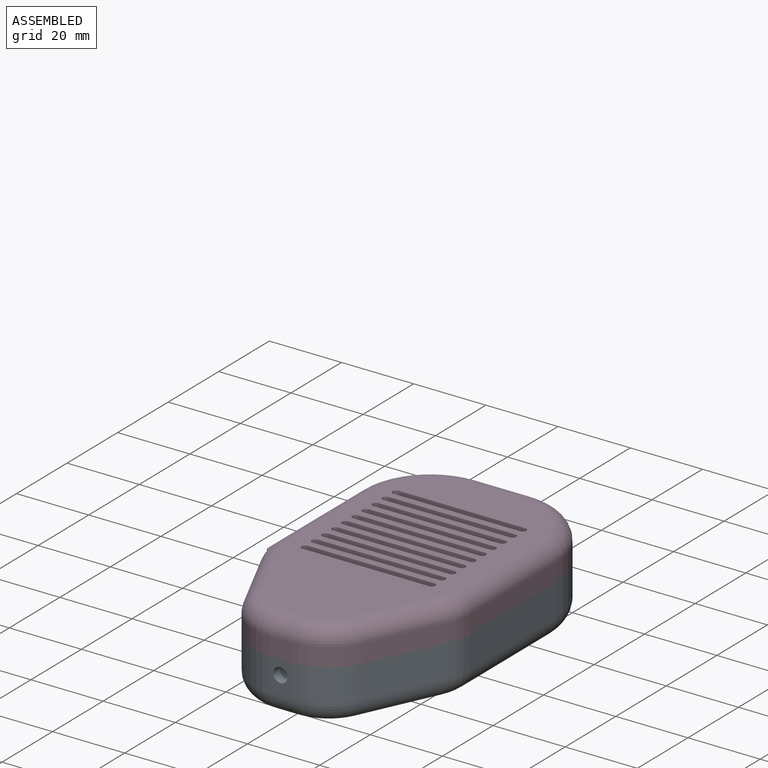
[diagram: assembled view]
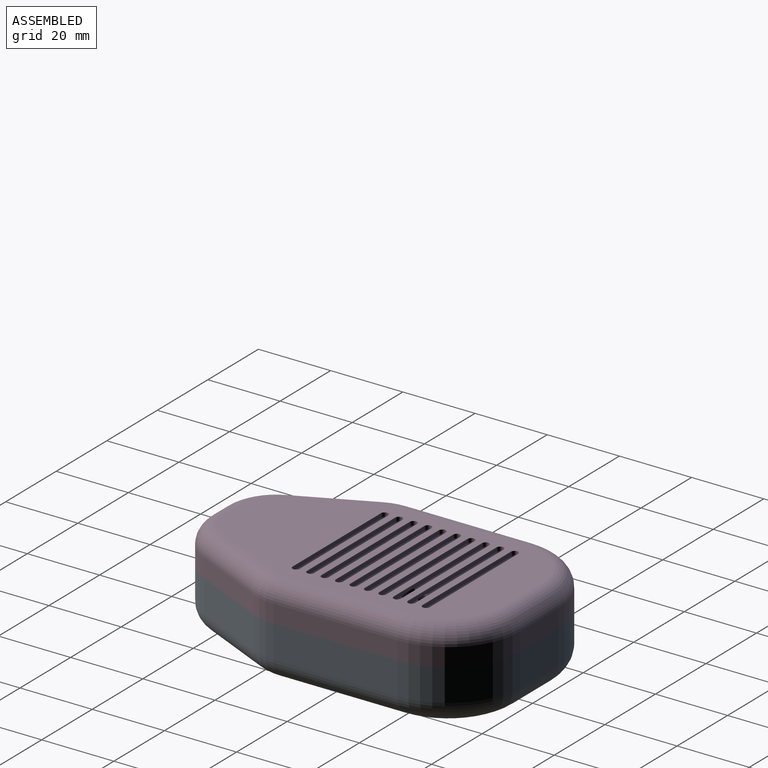
[diagram: assembled view, second angle]
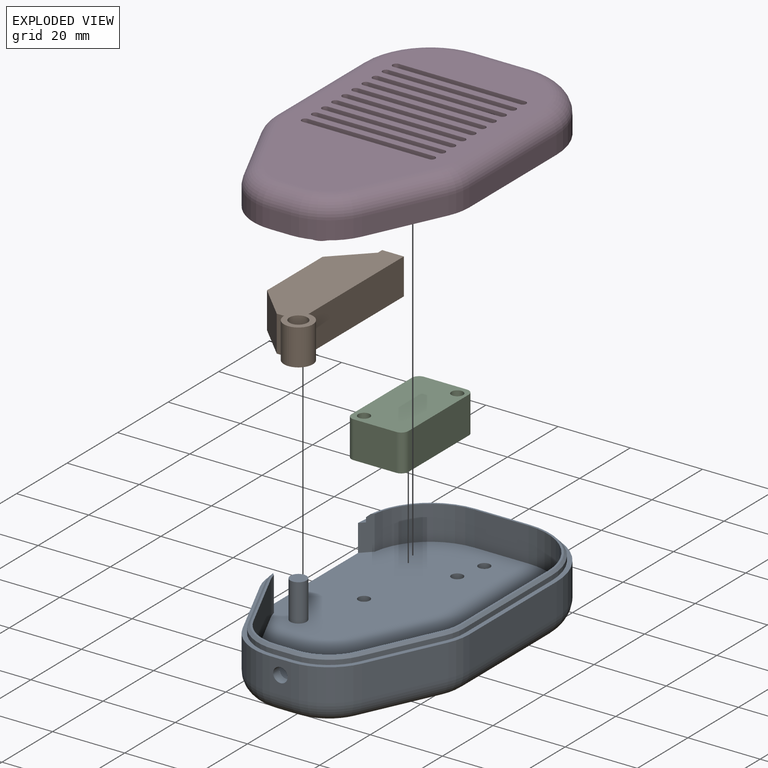
[diagram: exploded view]
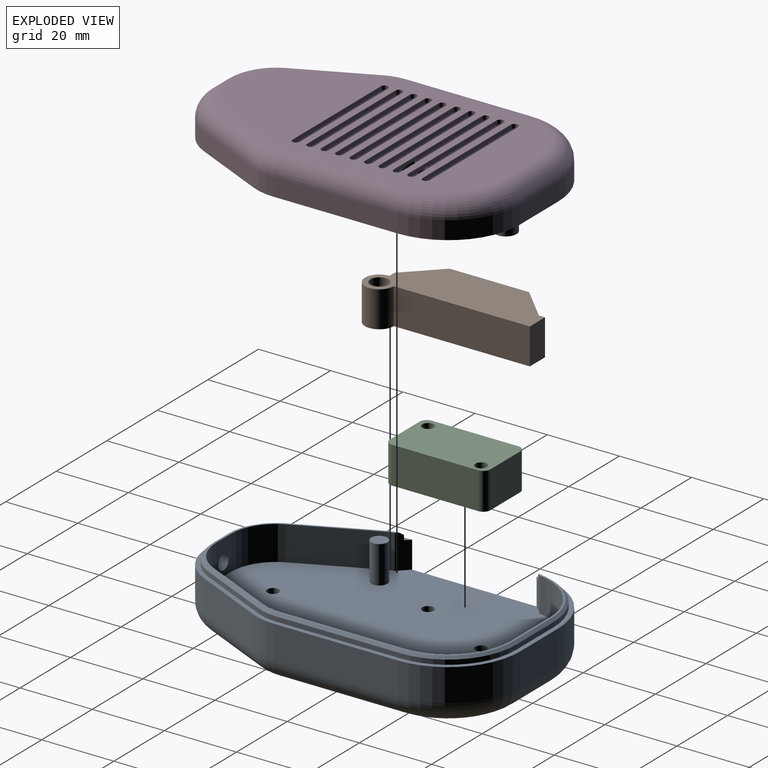
[diagram: exploded view, second angle]
ASSEMBLY  parts=4 mates=3
PART A: 70 faces, bbox 58.3x92.9x17.9 mm
  f0: cylinder r=17.5mm len=17.29mm, axis (0,0,-1), area 235.3mm2, adj f14,f19,f26,f44
  f1: plane 90x55mm, normal (0,0,1), area 256.7mm2, adj f2,f4,f5,f6,f7,f8,f9,f10
  f2: plane 15x9mm, normal (0,1,0), area 135mm2, adj f1,f8,f9,f59
  f3: plane 34.51x1.5mm, normal (-1,0,0), area 51.8mm2, adj f8,f10,f19,f60
  f4: plane 20.49x9.56mm, normal (-0.91,-0.42,0), area 203.5mm2, adj f1,f10,f11,f64
  f5: plane 9x5.89mm, normal (0,-1,0), area 40.4mm2, adj f1,f11,f12,f56,f68
  f6: plane 20.49x9.56mm, normal (0.91,-0.42,0), area 203.5mm2, adj f1,f12,f13,f67
  f7: plane 34.51x9mm, normal (1,0,0), area 310.6mm2, adj f1,f9,f13,f63
  f8: cylinder r=20mm len=20mm, axis (0,0,-1), area 282.7mm2, adj f1,f2,f3,f26,f58
  f9: cylinder r=20mm len=20mm, axis (0,0,-1), area 282.7mm2, adj f1,f2,f7,f61
  f10: cylinder r=15mm len=9mm, axis (0,0,1), area 58.9mm2, adj f1,f3,f4,f25,f62
  f11: cylinder r=15mm len=13.59mm, axis (0,0,1), area 153.2mm2, adj f1,f4,f5,f66
  f12: cylinder r=15mm len=13.59mm, axis (0,0,-1), area 153.2mm2, adj f1,f5,f6,f69
  f13: cylinder r=15mm len=9mm, axis (0,0,-1), area 58.9mm2, adj f1,f6,f7,f65
  f14: plane 15x9.5mm, normal (0,-1,0), area 142.5mm2, adj f0,f19,f20,f44
  f15: plane 20.49x9.56mm, normal (0.91,0.42,0), area 214.8mm2, adj f19,f21,f22,f44
  f16: plane 9.5x5.89mm, normal (0,1,0), area 43.4mm2, adj f19,f22,f23,f44,f56
  f17: plane 20.49x9.56mm, normal (-0.91,0.42,0), area 214.8mm2, adj f19,f23,f24,f44
  f18: plane 34.51x9.5mm, normal (-1,0,0), area 327.8mm2, adj f19,f20,f24,f44
  f19: plane 85x52.5mm, normal (0,0,1), area 3714.6mm2, adj f0,f3,f14,f15,f16,f17,f18,f20
  f20: cylinder r=17.5mm len=17.5mm, axis (0,0,-1), area 261.1mm2, adj f14,f18,f19,f44
  f21: cylinder r=12.5mm len=9.5mm, axis (0,0,1), area 24.8mm2, adj f15,f19,f25,f44
  f22: cylinder r=12.5mm len=11.33mm, axis (0,0,1), area 134.7mm2, adj f15,f16,f19,f44
  f23: cylinder r=12.5mm len=11.33mm, axis (0,0,-1), area 134.7mm2, adj f16,f17,f19,f44
  f24: cylinder r=12.5mm len=9.5mm, axis (0,0,-1), area 51.8mm2, adj f17,f18,f19,f44
  f25: plane 9.5x2.82mm, normal (0.71,0.71,0), area 33.8mm2, adj f1,f10,f19,f21,f34,f44,f45
  f26: plane 9.5x2.71mm, normal (0.71,-0.71,0), area 32.4mm2, adj f0,f1,f8,f19,f33,f44,f55
  f27: plane 4.5x4.5mm, normal (0,0,1), area 15.9mm2, adj f28
  f28: cylinder r=2.25mm len=10.35mm, axis (0,0,-1), area 146.3mm2, adj f19,f27
  f29: cylinder r=1.6mm len=7.5mm, axis (0,0,1), area 75.4mm2, adj f19,f57
  f30: cylinder r=1.6mm len=7.5mm, axis (0,0,1), area 75.4mm2, adj f19,f57
  f31: cylinder r=1.6mm len=7.5mm, axis (0,0,1), area 75.4mm2, adj f19,f57
  f32: cylinder r=1.6mm len=7.5mm, axis (0,0,1), area 75.4mm2, adj f19,f57
  f33: cylinder r=18.75mm len=18.71mm, axis (0,0,-1), area 36.6mm2, adj f1,f26,f43,f55
  f34: cylinder r=13.75mm len=4.5mm, axis (0,0,-1), area 6.1mm2, adj f1,f25,f35,f45
  f35: plane 20.49x9.56mm, normal (-0.91,-0.42,0), area 29.4mm2, adj f1,f34,f36,f46
  f36: cylinder r=13.75mm len=12.46mm, axis (0,0,-1), area 20.3mm2, adj f1,f35,f37,f47
  f37: plane 5.89x1.3mm, normal (0,-1,0), area 7.7mm2, adj f1,f36,f38,f48
  f38: cylinder r=13.75mm len=12.46mm, axis (0,0,-1), area 20.3mm2, adj f1,f37,f39,f49
  f39: plane 20.49x9.56mm, normal (0.91,-0.42,0), area 29.4mm2, adj f1,f38,f40,f50
  f40: cylinder r=13.75mm len=5.81mm, axis (0,0,-1), area 7.8mm2, adj f1,f39,f41,f51
  f41: plane 34.51x1.3mm, normal (1,0,0), area 44.9mm2, adj f1,f40,f42,f52
  f42: cylinder r=18.75mm len=18.75mm, axis (0,0,-1), area 38.3mm2, adj f1,f41,f43,f53
  f43: plane 15x1.3mm, normal (0,1,0), area 19.5mm2, adj f1,f33,f42,f54
  f44: plane 86.1x50.98mm, normal (0,0,1), area 105.4mm2, adj f0,f14,f15,f16,f17,f18,f20,f21
  f45: cone r=13.05mm half-angle=45deg, axis (0,0,-1), area 4.1mm2, adj f25,f34,f44,f46
  f46: plane 20.79x10.19mm, normal (-0.64,-0.3,0.71), area 22.4mm2, adj f35,f44,f45,f47
  f47: cone r=13.05mm half-angle=45deg, axis (0,0,-1), area 15mm2, adj f36,f44,f46,f48
  f48: plane 5.89x0.7mm, normal (0,-0.71,0.71), area 5.8mm2, adj f37,f44,f47,f49
  f49: cone r=13.05mm half-angle=45deg, axis (0,0,-1), area 15mm2, adj f38,f44,f48,f50
  f50: plane 20.79x10.19mm, normal (0.64,-0.3,0.71), area 22.4mm2, adj f39,f44,f49,f51
  f51: cone r=13.05mm half-angle=45deg, axis (0,0,-1), area 5.8mm2, adj f40,f44,f50,f52
  f52: plane 34.51x0.7mm, normal (0.71,0,0.71), area 34.2mm2, adj f41,f44,f51,f53
  f53: cone r=18.05mm half-angle=45deg, axis (0,0,-1), area 28.6mm2, adj f42,f44,f52,f54
  f54: plane 15x0.7mm, normal (0,0.71,0.71), area 14.8mm2, adj f43,f44,f53,f55
  f55: cone r=18.05mm half-angle=45deg, axis (0,0,-1), area 26.9mm2, adj f26,f33,f44,f54
  f56: cylinder r=2mm len=4mm, axis (0,-1,0), area 31.4mm2, adj f5,f16
  f57: plane 78x43mm, normal (0,0,-1), area 2873.2mm2, adj f29,f30,f31,f32,f58,f59,f60,f61
  f58: torus R=14mm, axis (0,0,1), area 263.8mm2, adj f8,f57,f59,f60
  f59: cylinder r=6mm len=15mm, axis (-1,0,0), area 141.4mm2, adj f2,f57,f58,f61
  f60: cylinder r=6mm len=34.51mm, axis (0,-1,0), area 325.2mm2, adj f3,f57,f58,f62
  f61: torus R=14mm, axis (0,0,1), area 263.8mm2, adj f9,f57,f59,f63
  f62: torus R=9mm, axis (0,0,1), area 52.7mm2, adj f10,f57,f60,f64
  f63: cylinder r=6mm len=34.51mm, axis (0,1,0), area 325.2mm2, adj f7,f57,f61,f65
  f64: cylinder r=6mm len=23.03mm, axis (0.42,-0.91,0), area 213.1mm2, adj f4,f57,f62,f66
  f65: torus R=9mm, axis (0,0,1), area 52.7mm2, adj f13,f57,f63,f67
  f66: torus R=9mm, axis (0,0,1), area 137.1mm2, adj f11,f57,f64,f68
  f67: cylinder r=6mm len=23.03mm, axis (0.42,0.91,0), area 213.1mm2, adj f6,f57,f65,f69
  f68: cylinder r=6mm len=6mm, axis (1,0,0), area 55.5mm2, adj f5,f57,f66,f69
  f69: torus R=9mm, axis (0,0,1), area 137.1mm2, adj f12,f57,f67,f68
PART B: 11 faces, bbox 19x45.7x10 mm
  f0: plane 10x2mm, normal (0,-1,0), area 20mm2, adj f1,f7,f9,f10
  f1: cylinder r=4mm len=10mm, axis (0,0,-1), area 188.5mm2, adj f0,f2,f9,f10
  f2: plane 37.7x10mm, normal (1,0,0), area 377mm2, adj f1,f3,f9,f10
  f3: plane 10x6mm, normal (0,1,0), area 60mm2, adj f2,f4,f9,f10
  f4: plane 10x1.7mm, normal (-1,0,0), area 17mm2, adj f3,f5,f9,f10
  f5: plane 10x9mm, normal (-0.71,0.71,0), area 127.3mm2, adj f4,f6,f9,f10
  f6: plane 22x10mm, normal (-1,0,0), area 220mm2, adj f5,f7,f9,f10
  f7: plane 10x9mm, normal (-0.71,-0.71,0), area 127.3mm2, adj f0,f6,f9,f10
  f8: cylinder r=2.5mm len=10mm, axis (0,0,-1), area 157.1mm2, adj f9,f10
  f9: plane 45.7x19mm, normal (0,0,1), area 547.3mm2, adj f0,f1,f2,f3,f4,f5,f6,f7
  f10: plane 45.7x19mm, normal (0,0,-1), area 547.3mm2, adj f0,f1,f2,f3,f4,f5,f6,f7
PART C: 19 faces, bbox 18.3x27.9x10.2 mm
  f0: plane 23.87x10.23mm, normal (1,0,0), area 244.2mm2, adj f6,f7,f13,f16
  f1: plane 11.78x10.23mm, normal (0,1,0), area 120.5mm2, adj f6,f7,f13,f14
  f2: plane 23.87x10.23mm, normal (-1,0,0), area 233.2mm2, adj f6,f7,f8,f9,f10,f11,f14,f15
  f3: cylinder r=1.61mm len=10.23mm, axis (0,0,-1), area 103.8mm2, adj f6,f7
  f4: plane 11.78x10.23mm, normal (0,-1,0), area 120.5mm2, adj f6,f7,f15,f16
  f5: cylinder r=1.61mm len=10.23mm, axis (0,0,-1), area 103.8mm2, adj f6,f7
  f6: plane 27.87x15.78mm, normal (0,0,1), area 420mm2, adj f0,f1,f2,f3,f4,f5,f13,f14
  f7: plane 27.87x15.78mm, normal (0,0,-1), area 420mm2, adj f0,f1,f2,f3,f4,f5,f13,f14
  f8: plane 2.65x2.54mm, normal (0,0,-1), area 6.3mm2, adj f2,f9,f11,f12,f17,f18
  f9: plane 4.14x1.54mm, normal (0,-1,0), area 6.4mm2, adj f2,f8,f10,f17
  f10: plane 2.65x2.54mm, normal (0,0,1), area 6.3mm2, adj f2,f9,f11,f12,f17,f18
  f11: plane 4.14x1.54mm, normal (0,1,0), area 6.4mm2, adj f2,f8,f10,f18
  f12: plane 4.14x0.65mm, normal (-1,0,0), area 2.7mm2, adj f8,f10,f17,f18
  f13: cylinder r=2mm len=10.23mm, axis (0,0,1), area 32.1mm2, adj f0,f1,f6,f7
  f14: cylinder r=2mm len=10.23mm, axis (0,0,-1), area 32.1mm2, adj f1,f2,f6,f7
  f15: cylinder r=2mm len=10.23mm, axis (0,0,1), area 32.1mm2, adj f2,f4,f6,f7
  f16: cylinder r=2mm len=10.23mm, axis (0,0,-1), area 32.1mm2, adj f0,f4,f6,f7
  f17: cylinder r=1mm len=4.14mm, axis (0,0,-1), area 6.5mm2, adj f8,f9,f10,f12
  f18: cylinder r=1mm len=4.14mm, axis (0,0,1), area 6.5mm2, adj f8,f10,f11,f12
PART D: 181 faces, bbox 58.3x92.9x17 mm
  f0: cylinder r=1mm len=3.24mm, axis (-1,0,0), area 9.1mm2, adj f136,f138,f169,f178
  f1: plane 81x46mm, normal (0,0,1), area 3107.7mm2, adj f55,f59,f74,f75,f76,f77,f78,f79
  f2: plane 15x3.3mm, normal (0,-1,0), area 49.5mm2, adj f7,f8,f42,f75
  f3: plane 34.51x3.3mm, normal (1,0,0), area 113.9mm2, adj f7,f9,f42,f76
  f4: plane 20.49x9.56mm, normal (0.91,0.42,0), area 74.6mm2, adj f9,f10,f42,f80
  f5: plane 5.89x3.3mm, normal (0,1,0), area 19.4mm2, adj f10,f11,f42,f84
  f6: plane 20.49x9.56mm, normal (-0.91,0.42,0), area 74.6mm2, adj f11,f28,f42,f83
  f7: cylinder r=17.5mm len=17.5mm, axis (0,0,-1), area 90.7mm2, adj f2,f3,f42,f74
  f8: cylinder r=17.5mm len=17.5mm, axis (0,0,-1), area 88mm2, adj f2,f14,f29,f30,f42,f77
  f9: cylinder r=12.5mm len=5.28mm, axis (0,0,1), area 18mm2, adj f3,f4,f42,f78
  f10: cylinder r=12.5mm len=11.33mm, axis (0,0,1), area 46.8mm2, adj f4,f5,f42,f82
  f11: cylinder r=12.5mm len=11.33mm, axis (0,0,-1), area 46.8mm2, adj f5,f6,f42,f85
  f12: plane 3.23x2.85mm, normal (-0.71,0.71,0), area 7.7mm2, adj f15,f27,f28,f30,f39,f42,f53
  f13: plane 34.51x1.8mm, normal (1,0,0), area 62.1mm2, adj f23,f27,f30,f67
  f14: plane 34.51x2.3mm, normal (-1,0,0), area 79.4mm2, adj f8,f28,f30,f79
  f15: plane 90x55mm, normal (0,0,1), area 114.6mm2, adj f12,f16,f17,f18,f19,f20,f22,f23
  f16: plane 15x5mm, normal (0,1,0), area 75mm2, adj f15,f22,f23,f63
  f17: plane 34.51x5mm, normal (-1,0,0), area 172.5mm2, adj f15,f22,f24,f64
  f18: plane 20.49x9.56mm, normal (-0.91,-0.42,0), area 113.1mm2, adj f15,f24,f25,f68
  f19: plane 5.89x5mm, normal (0,-1,0), area 29.4mm2, adj f15,f25,f26,f72
  f20: plane 20.49x9.56mm, normal (0.91,-0.42,0), area 113.1mm2, adj f15,f26,f27,f71
  f21: plane 80x45mm, normal (0,0,-1), area 2384.5mm2, adj f62,f63,f64,f65,f66,f67,f68,f69
  f22: cylinder r=20mm len=20mm, axis (0,0,-1), area 157.1mm2, adj f15,f16,f17,f62
  f23: cylinder r=20mm len=20mm, axis (0,0,-1), area 157.1mm2, adj f13,f15,f16,f29,f65
  f24: cylinder r=15mm len=6.34mm, axis (0,0,1), area 32.7mm2, adj f15,f17,f18,f66
  f25: cylinder r=15mm len=13.59mm, axis (0,0,1), area 85.1mm2, adj f15,f18,f19,f70
  f26: cylinder r=15mm len=13.59mm, axis (0,0,-1), area 85.1mm2, adj f15,f19,f20,f73
  f27: cylinder r=15mm len=6.34mm, axis (0,0,-1), area 32.7mm2, adj f12,f13,f15,f20,f69
  f28: cylinder r=12.5mm len=5.28mm, axis (0,0,-1), area 15.2mm2, adj f6,f12,f14,f30,f42,f81
  f29: plane 3.22x2.73mm, normal (-0.71,-0.71,0), area 7.5mm2, adj f8,f15,f23,f30,f40,f42,f43
  f30: plane 40.04x2.82mm, normal (0,0,1), area 92.9mm2, adj f8,f12,f13,f14,f28,f29
  f31: cylinder r=18.75mm len=18.75mm, axis (0,0,1), area 44.2mm2, adj f32,f41,f42,f45
  f32: plane 34.51x1.5mm, normal (1,0,0), area 51.8mm2, adj f31,f33,f42,f46
  f33: cylinder r=13.75mm len=5.81mm, axis (0,0,1), area 9mm2, adj f32,f34,f42,f47
  f34: plane 20.49x9.56mm, normal (0.91,0.42,0), area 33.9mm2, adj f33,f35,f42,f48
  f35: cylinder r=13.75mm len=12.46mm, axis (0,0,1), area 23.4mm2, adj f34,f36,f42,f49
  f36: plane 5.89x1.5mm, normal (0,1,0), area 8.8mm2, adj f35,f37,f42,f50
  f37: cylinder r=13.75mm len=12.46mm, axis (0,0,1), area 23.4mm2, adj f36,f38,f42,f51
  f38: plane 20.49x9.56mm, normal (-0.91,0.42,0), area 33.9mm2, adj f37,f39,f42,f52
  f39: cylinder r=13.75mm len=4.5mm, axis (0,0,1), area 7mm2, adj f12,f38,f42,f53
  f40: cylinder r=18.75mm len=18.71mm, axis (0,0,1), area 42.2mm2, adj f29,f41,f42,f43
  f41: plane 15x1.5mm, normal (0,-1,0), area 22.5mm2, adj f31,f40,f42,f44
  f42: plane 87.5x52.46mm, normal (0,0,1), area 243.4mm2, adj f2,f3,f4,f5,f6,f7,f8,f9
  f43: cone r=18.75mm half-angle=45deg, axis (0,0,1), area 28.8mm2, adj f15,f29,f40,f44
  f44: plane 15x0.7mm, normal (0,-0.71,0.71), area 14.8mm2, adj f15,f41,f43,f45
  f45: cone r=18.75mm half-angle=45deg, axis (0,0,1), area 29.7mm2, adj f15,f31,f44,f46
  f46: plane 34.51x0.7mm, normal (0.71,0,0.71), area 34.2mm2, adj f15,f32,f45,f47
  f47: cone r=13.75mm half-angle=45deg, axis (0,0,1), area 6.1mm2, adj f15,f33,f46,f48
  f48: plane 20.79x10.19mm, normal (0.64,0.3,0.71), area 22.4mm2, adj f15,f34,f47,f49
  f49: cone r=13.75mm half-angle=45deg, axis (0,0,1), area 15.8mm2, adj f15,f35,f48,f50
  f50: plane 5.89x0.7mm, normal (0,0.71,0.71), area 5.8mm2, adj f15,f36,f49,f51
  f51: cone r=13.75mm half-angle=45deg, axis (0,0,1), area 15.8mm2, adj f15,f37,f50,f52
  f52: plane 20.79x10.19mm, normal (-0.64,0.3,0.71), area 22.4mm2, adj f15,f38,f51,f53
  f53: cone r=13.75mm half-angle=45deg, axis (0,0,1), area 5.2mm2, adj f12,f15,f39,f52
  f54: cylinder r=1.4mm len=13.5mm, axis (0,0,-1), area 118.8mm2, adj f57,f86
  f55: cylinder r=3mm len=14.5mm, axis (0,0,-1), area 273.3mm2, adj f1,f56
  f56: plane 6x6mm, normal (0,0,1), area 10.2mm2, adj f55,f86
  f57: plane 2.8x2.8mm, normal (0,0,1), area 6.2mm2, adj f54
  f58: cylinder r=1.4mm len=13.5mm, axis (0,0,-1), area 118.8mm2, adj f61,f87
  f59: cylinder r=3mm len=14.5mm, axis (0,0,-1), area 273.3mm2, adj f1,f60
  f60: plane 6x6mm, normal (0,0,1), area 10.2mm2, adj f59,f87
  f61: plane 2.8x2.8mm, normal (0,0,1), area 6.2mm2, adj f58
  f62: torus R=15mm, axis (0,0,1), area 224.3mm2, adj f21,f22,f63,f64
  f63: cylinder r=5mm len=15mm, axis (-1,0,0), area 117.8mm2, adj f16,f21,f62,f65
  f64: cylinder r=5mm len=34.51mm, axis (0,-1,0), area 271mm2, adj f17,f21,f62,f66
  f65: torus R=15mm, axis (0,0,1), area 224.3mm2, adj f21,f23,f63,f67
  f66: torus R=10mm, axis (0,0,1), area 45.2mm2, adj f21,f24,f64,f68
  f67: cylinder r=5mm len=34.51mm, axis (0,1,0), area 271mm2, adj f13,f21,f65,f69
  f68: cylinder r=5mm len=22.61mm, axis (0.42,-0.91,0), area 177.6mm2, adj f18,f21,f66,f70
  f69: torus R=10mm, axis (0,0,1), area 45.2mm2, adj f21,f27,f67,f71
  f70: torus R=10mm, axis (0,0,1), area 117.5mm2, adj f21,f25,f68,f72
  f71: cylinder r=5mm len=22.61mm, axis (0.42,0.91,0), area 177.6mm2, adj f20,f21,f69,f73
  f72: cylinder r=5mm len=5.89mm, axis (1,0,0), area 46.2mm2, adj f19,f21,f70,f73
  f73: torus R=10mm, axis (0,0,1), area 117.5mm2, adj f21,f26,f71,f72
  f74: torus R=15.5mm, axis (0,0,1), area 82.8mm2, adj f1,f7,f75,f76
  f75: cylinder r=2mm len=15mm, axis (1,0,0), area 47.1mm2, adj f1,f2,f74,f77
  f76: cylinder r=2mm len=34.51mm, axis (0,1,0), area 108.4mm2, adj f1,f3,f74,f78
  f77: torus R=15.5mm, axis (0,0,1), area 82.8mm2, adj f1,f8,f75,f79
  f78: torus R=10.5mm, axis (0,0,1), area 16.1mm2, adj f1,f9,f76,f80
  f79: cylinder r=2mm len=34.51mm, axis (0,-1,0), area 108.4mm2, adj f1,f14,f77,f81
  f80: cylinder r=2mm len=21.34mm, axis (-0.42,0.91,0), area 71mm2, adj f1,f4,f78,f82
  f81: torus R=10.5mm, axis (0,0,1), area 16.1mm2, adj f1,f28,f79,f83
  f82: torus R=10.5mm, axis (0,0,1), area 42mm2, adj f1,f10,f80,f84
  f83: cylinder r=2mm len=21.34mm, axis (-0.42,-0.91,0), area 71mm2, adj f1,f6,f81,f85
  f84: cylinder r=2mm len=5.89mm, axis (-1,0,0), area 18.5mm2, adj f1,f5,f82,f85
  f85: torus R=10.5mm, axis (0,0,1), area 42mm2, adj f1,f11,f83,f84
  f86: cone r=1.4mm half-angle=45deg, axis (0,0,1), area 16.9mm2, adj f54,f56
  f87: cone r=1.4mm half-angle=45deg, axis (0,0,1), area 16.9mm2, adj f58,f60
  f88: plane 7.5x1.06mm, normal (0,-1,0), area 8mm2, adj f1,f89,f91,f92
  f89: cylinder r=6mm len=7.5mm, axis (0,0,-1), area 59.5mm2, adj f1,f88,f90,f92
  f90: plane 7.5x1.06mm, normal (-1,0,0), area 7.9mm2, adj f1,f89,f91,f92
  f91: cylinder r=4.95mm len=7.5mm, axis (0,0,-1), area 47.1mm2, adj f1,f88,f90,f92
  f92: plane 5.23x5.19mm, normal (0,0,1), area 7.5mm2, adj f88,f89,f90,f91
  f93: plane 7.5x1.06mm, normal (0,-1,0), area 8mm2, adj f1,f94,f96,f97
  f94: cylinder r=4.95mm len=7.5mm, axis (0,0,-1), area 48.2mm2, adj f1,f93,f95,f97
  f95: plane 7.5x1.06mm, normal (1,0,0), area 7.9mm2, adj f1,f94,f96,f97
  f96: cylinder r=6mm len=7.5mm, axis (0,0,-1), area 60.6mm2, adj f1,f93,f95,f97
  f97: plane 5.37x5.21mm, normal (0,0,1), area 7.6mm2, adj f93,f94,f95,f96
  f98: cylinder r=4.95mm len=7.5mm, axis (0,0,-1), area 51.2mm2, adj f1,f99,f101,f102
  f99: plane 7.5x1.05mm, normal (0,1,0), area 7.9mm2, adj f1,f98,f100,f102
  f100: cylinder r=6mm len=7.5mm, axis (0,0,-1), area 63.6mm2, adj f1,f99,f101,f102
  f101: plane 7.5x1.06mm, normal (1,0,0), area 7.9mm2, adj f1,f98,f100,f102
  f102: plane 5.61x5.41mm, normal (0,0,1), area 8mm2, adj f98,f99,f100,f101
  f103: cylinder r=4.95mm len=7.5mm, axis (0,0,-1), area 50.2mm2, adj f1,f104,f106,f107
  f104: plane 7.5x1.06mm, normal (-1,0,0), area 7.9mm2, adj f1,f103,f105,f107
  f105: cylinder r=6mm len=7.5mm, axis (0,0,-1), area 62.6mm2, adj f1,f104,f106,f107
  f106: plane 7.5x1.05mm, normal (0,1,0), area 7.9mm2, adj f1,f103,f105,f107
  f107: plane 5.6x5.27mm, normal (0,0,1), area 7.9mm2, adj f103,f104,f105,f106
  f108: plane 35x1mm, normal (0,-1,0), area 35mm2, adj f21,f109,f111,f149
  f109: cylinder r=1mm len=2mm, axis (0,0,-1), area 3.1mm2, adj f21,f108,f110,f150
  f110: plane 35x1mm, normal (0,1,0), area 35mm2, adj f21,f109,f111,f149
  f111: cylinder r=1mm len=2mm, axis (0,0,-1), area 3.1mm2, adj f21,f108,f110,f148
  f112: plane 35x1mm, normal (0,-1,0), area 35mm2, adj f21,f113,f115,f152
  f113: cylinder r=1mm len=2mm, axis (0,0,-1), area 3.1mm2, adj f21,f112,f114,f153
  f114: plane 35x1mm, normal (0,1,0), area 35mm2, adj f21,f113,f115,f152
  f115: cylinder r=1mm len=2mm, axis (0,0,-1), area 3.1mm2, adj f21,f112,f114,f151
  f116: plane 35x1mm, normal (0,-1,0), area 35mm2, adj f21,f117,f119,f155
  f117: cylinder r=1mm len=2mm, axis (0,0,-1), area 3.1mm2, adj f21,f116,f118,f156
  f118: plane 35x1mm, normal (0,1,0), area 35mm2, adj f21,f117,f119,f155
  f119: cylinder r=1mm len=2mm, axis (0,0,-1), area 3.1mm2, adj f21,f116,f118,f154
  f120: plane 35x1mm, normal (0,-1,0), area 35mm2, adj f21,f121,f123,f158
  f121: cylinder r=1mm len=2mm, axis (0,0,-1), area 3.1mm2, adj f21,f120,f122,f159
  f122: plane 35x1mm, normal (0,1,0), area 35mm2, adj f21,f121,f123,f158
  f123: cylinder r=1mm len=2mm, axis (0,0,-1), area 3.1mm2, adj f21,f120,f122,f157
  f124: plane 35x1mm, normal (0,-1,0), area 35mm2, adj f21,f125,f127,f161
  f125: cylinder r=1mm len=2mm, axis (0,0,-1), area 3.1mm2, adj f21,f124,f126,f162
  f126: plane 35x1mm, normal (0,1,0), area 35mm2, adj f21,f125,f127,f161
  f127: cylinder r=1mm len=2mm, axis (0,0,-1), area 3.1mm2, adj f21,f124,f126,f160
  f128: plane 35x1mm, normal (0,-1,0), area 35mm2, adj f21,f129,f131,f164
  f129: cylinder r=1mm len=2mm, axis (0,0,-1), area 3.1mm2, adj f21,f128,f130,f165
  f130: plane 35x1mm, normal (0,1,0), area 35mm2, adj f21,f129,f131,f164
  f131: cylinder r=1mm len=2mm, axis (0,0,-1), area 3.1mm2, adj f21,f128,f130,f163
  f132: plane 35x1mm, normal (0,-1,0), area 35mm2, adj f21,f133,f135,f167
  f133: cylinder r=1mm len=2mm, axis (0,0,-1), area 3.1mm2, adj f21,f132,f134,f168
  f134: plane 35x1mm, normal (0,1,0), area 35mm2, adj f21,f133,f135,f167
  f135: cylinder r=1mm len=2mm, axis (0,0,-1), area 3.1mm2, adj f21,f132,f134,f166
  f136: plane 35x1mm, normal (0,-1,0), area 35mm2, adj f0,f21,f137,f139,f170,f179
  f137: cylinder r=1mm len=2mm, axis (0,0,-1), area 3.1mm2, adj f21,f136,f138,f171
  f138: plane 35x1mm, normal (0,1,0), area 35mm2, adj f0,f21,f137,f139,f170,f180
  f139: cylinder r=1mm len=2mm, axis (0,0,-1), area 3.1mm2, adj f21,f136,f138,f169
  f140: plane 35x1mm, normal (0,-1,0), area 35mm2, adj f21,f141,f143,f173
  f141: cylinder r=1mm len=2mm, axis (0,0,-1), area 3.1mm2, adj f21,f140,f142,f172
  f142: plane 35x1mm, normal (0,1,0), area 35mm2, adj f21,f141,f143,f173,f179
  f143: cylinder r=1mm len=2mm, axis (0,0,-1), area 3.1mm2, adj f21,f140,f142,f174
  f144: plane 35x1mm, normal (0,-1,0), area 35mm2, adj f21,f145,f147,f176
  f145: cylinder r=1mm len=2mm, axis (0,0,-1), area 3.1mm2, adj f21,f144,f146,f177
  f146: plane 35x1mm, normal (0,1,0), area 35mm2, adj f21,f145,f147,f176
  f147: cylinder r=1mm len=2mm, axis (0,0,-1), area 3.1mm2, adj f21,f144,f146,f175
  f148: sphere r=1mm, area 3.1mm2, adj f111,f149
  f149: cylinder r=1mm len=35mm, axis (-1,0,0), area 110mm2, adj f108,f110,f148,f150
  f150: sphere r=1mm, area 3.1mm2, adj f109,f149
  f151: sphere r=1mm, area 3.1mm2, adj f115,f152
  f152: cylinder r=1mm len=35mm, axis (-1,0,0), area 110mm2, adj f112,f114,f151,f153
  f153: sphere r=1mm, area 3.1mm2, adj f113,f152
  f154: sphere r=1mm, area 3.1mm2, adj f119,f155
  f155: cylinder r=1mm len=35mm, axis (-1,0,0), area 110mm2, adj f116,f118,f154,f156
  f156: sphere r=1mm, area 3.1mm2, adj f117,f155
  f157: sphere r=1mm, area 3.1mm2, adj f123,f158
  f158: cylinder r=1mm len=35mm, axis (-1,0,0), area 110mm2, adj f120,f122,f157,f159
  f159: sphere r=1mm, area 3.1mm2, adj f121,f158
  f160: sphere r=1mm, area 3.1mm2, adj f127,f161
  f161: cylinder r=1mm len=35mm, axis (-1,0,0), area 110mm2, adj f124,f126,f160,f162
  f162: sphere r=1mm, area 3.1mm2, adj f125,f161
  f163: sphere r=1mm, area 3.1mm2, adj f131,f164
  f164: cylinder r=1mm len=35mm, axis (-1,0,0), area 110mm2, adj f128,f130,f163,f165
  f165: sphere r=1mm, area 3.1mm2, adj f129,f164
  f166: sphere r=1mm, area 3.1mm2, adj f135,f167
  f167: cylinder r=1mm len=35mm, axis (-1,0,0), area 110mm2, adj f132,f134,f166,f168
  f168: sphere r=1mm, area 3.1mm2, adj f133,f167
  f169: sphere r=1mm, area 3.1mm2, adj f0,f139
  f170: cylinder r=1mm len=26.78mm, axis (-1,0,0), area 83.1mm2, adj f136,f138,f171,f178
  f171: sphere r=1mm, area 3.1mm2, adj f137,f170
  f172: sphere r=1mm, area 3.1mm2, adj f141,f173
  f173: cylinder r=1mm len=35mm, axis (1,0,0), area 106.3mm2, adj f140,f142,f172,f174,f178
  f174: sphere r=1mm, area 3.1mm2, adj f143,f173
  f175: sphere r=1mm, area 3.1mm2, adj f147,f176
  f176: cylinder r=1mm len=35mm, axis (-1,0,0), area 110mm2, adj f144,f146,f175,f177
  f177: sphere r=1mm, area 3.1mm2, adj f145,f176
  f178: cylinder r=3mm len=6mm, axis (0,0,1), area 21.8mm2, adj f0,f1,f170,f173,f179,f180
  f179: plane 5.97x2mm, normal (0,0,1), area 10.4mm2, adj f136,f142,f178
  f180: plane 4.98x1.32mm, normal (0,0,1), area 4.6mm2, adj f138,f178
PLACE A t=(0.54,13.33,-9.6)mm fixed
PLACE B t=(-15.06,-3.54,-6.75)mm
PLACE C t=(-6.64,13.86,-7.1)mm
PLACE D rot(axis=(0,1,0),180deg) t=(0.54,13.33,10.4)mm
MATE fastened A.f32 <-> C.f5  axis (0,0,1) through (-11.7,2.84,-7.1)mm
MATE revolute B.f1 <-> A.f28  axis (0,0,1) through (-17.56,-14.76,3.25)mm
MATE slider A.f30 <-> D.f54  axis (0,0,1) through (0.54,32.94,-7.1)mm
